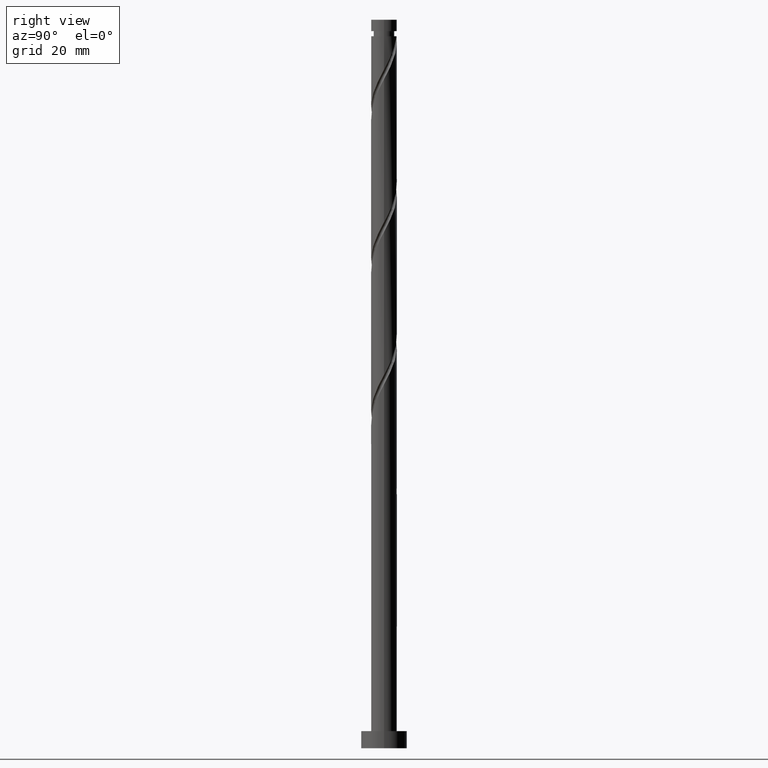
[diagram: clean part render]
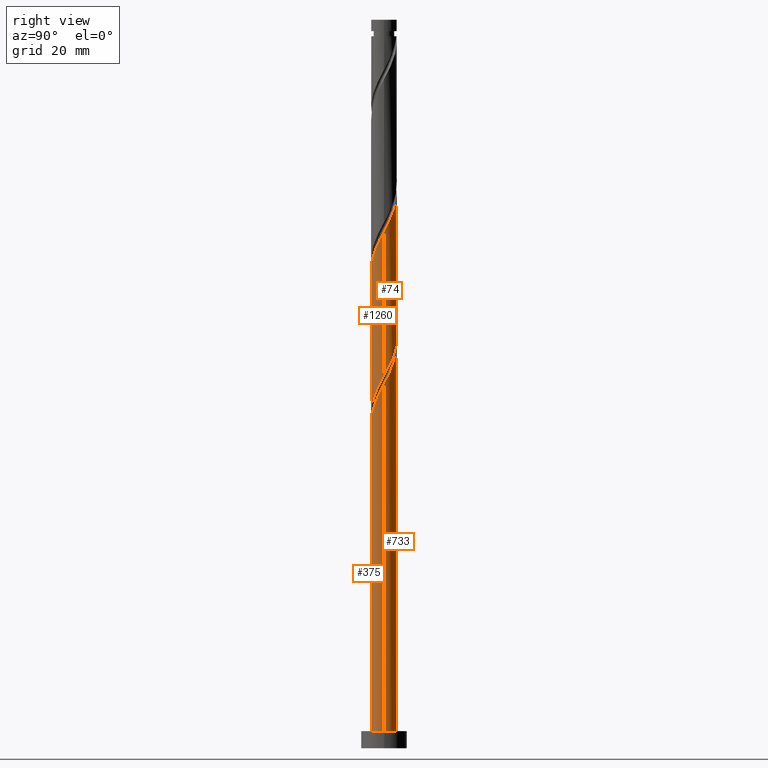
[diagram: same view with one multi-face feature highlighted, each face labeled with its STEP entity id]
A machine part, right view. The highlighted faces form ONE feature: a constant-radius fillet chain: 4 tangent blend faces with common blend radius 2.25 mm. The faces share edges in the B-rep.
Their STEP definitions:
[1] entity #733 (Cylinder):
#1 = CARTESIAN_POINT ( 'NONE',  ( 0.000000000000000000, 0.000000000000000000, 127.2999999999999972 ) ) ;
#16 = VECTOR ( 'NONE', #1168, 1000.000000000000000 ) ;
#29 = CARTESIAN_POINT ( 'NONE',  ( -1.050827842467678463, 1.989537847213452615, 72.28903186319759300 ) ) ;
#50 = DIRECTION ( 'NONE',  ( -1.000000000000000000, 0.000000000000000000, 0.000000000000000000 ) ) ;
#57 = CARTESIAN_POINT ( 'NONE',  ( 2.250000000000003553, 1.263851349445444954E-15, 63.56078950510882208 ) ) ;
#63 = CARTESIAN_POINT ( 'NONE',  ( -0.7647754849568962898, 2.140624081685873925, 71.68297125713698392 ) ) ;
#84 = CARTESIAN_POINT ( 'NONE',  ( -2.249999999999999556, 8.286078669737070471E-15, 51.92636513037725621 ) ) ;
#89 = CARTESIAN_POINT ( 'NONE',  ( -2.227674514516370330, 0.4523486032461996320, 51.07691065107637485 ) ) ;
#143 = DIRECTION ( 'NONE',  ( 0.000000000000000000, -0.000000000000000000, -1.000000000000000000 ) ) ;
#150 = EDGE_CURVE ( 'NONE', #1283, #771, #361, .T. ) ;
#152 = CARTESIAN_POINT ( 'NONE',  ( -1.336880199978460304, 1.838451612741031305, 72.89509246925820207 ) ) ;
#164 = CARTESIAN_POINT ( 'NONE',  ( -2.118597173968808534, 0.8238319100010177420, 48.65266822683393855 ) ) ;
#194 = CARTESIAN_POINT ( 'NONE',  ( 2.250000000000000000, 2.755455298081544285E-16, 127.2999999999999972 ) ) ;
#201 = AXIS2_PLACEMENT_3D ( 'NONE', #1195, #143, #50 ) ;
#213 = ORIENTED_EDGE ( 'NONE', *, *, #221, .T. ) ;
#221 = EDGE_CURVE ( 'NONE', #1461, #771, #1143, .T. ) ;
#223 = DIRECTION ( 'NONE',  ( -0.000000000000000000, -0.000000000000000000, -1.000000000000000000 ) ) ;
#235 = DIRECTION ( 'NONE',  ( 1.000000000000000000, 0.000000000000000000, 0.000000000000000000 ) ) ;
#237 = CARTESIAN_POINT ( 'NONE',  ( -1.373217619952648461, 1.782350517785876720, 48.04660762077334368 ) ) ;
#244 = CARTESIAN_POINT ( 'NONE',  ( 0.1307132084390630333, 2.269375918314128882, 45.01630459047031962 ) ) ;
#264 = ORIENTED_EDGE ( 'NONE', *, *, #1435, .F. ) ;
#278 = CARTESIAN_POINT ( 'NONE',  ( 2.227674514516373439, 0.4523486032461992989, 64.41024398440970344 ) ) ;
#294 = CARTESIAN_POINT ( 'NONE',  ( -2.250000000000004885, 0.2576900866165232618, 76.40816288547084412 ) ) ;
#304 = CARTESIAN_POINT ( 'NONE',  ( -2.249999999999999556, 8.286078669737068893E-15, 51.92636513037725621 ) ) ;
#313 = CARTESIAN_POINT ( 'NONE',  ( 0.1916127332030286845, 2.241826166426486910, 69.86478943895514249 ) ) ;
#320 = CARTESIAN_POINT ( 'NONE',  ( 2.250000000000003553, 1.263851349445444954E-15, 63.56078950510882208 ) ) ;
#358 = VECTOR ( 'NONE', #223, 1000.000000000000000 ) ;
#361 =( BOUNDED_CURVE ( )  B_SPLINE_CURVE ( 2, ( #84, #592, #1107, #89, #600, #1395, #510, #1530, #237, #1021, #379, #618, #1163, #244, #1156 ),
 .UNSPECIFIED., .F., .T. ) 
 B_SPLINE_CURVE_WITH_KNOTS ( ( 3, 2, 2, 2, 2, 2, 2, 3 ),
 ( 0.9295252162417514397, 0.9318181818181817677, 0.9431818181818182323, 0.9545454545454545858, 0.9659090909090909394, 0.9772727272727272929, 0.9886363636363636465, 1.000000000000000000 ),
 .UNSPECIFIED. ) 
 CURVE ( )  GEOMETRIC_REPRESENTATION_ITEM ( )  RATIONAL_B_SPLINE_CURVE ( ( 0.9061101570135543515, 0.9072237824201365708, 0.9090909090909138346, 0.8998376744372161840, 0.9090909090909138346, 0.8998376744372161840, 0.9090909090909138346, 0.8998376744372161840, 0.9090909090909138346, 0.8998376744372161840, 0.9090909090909138346, 0.8998376744372161840, 0.9090909090909138346, 0.8998376744372161840, 0.9090909090909138346 ) ) 
 REPRESENTATION_ITEM ( '' )  );
#379 = CARTESIAN_POINT ( 'NONE',  ( -0.8154464890247281605, 2.097032909502672293, 46.83448640865213264 ) ) ;
#385 = LINE ( 'NONE', #1135, #16 ) ;
#389 = AXIS2_PLACEMENT_3D ( 'NONE', #1, #876, #761 ) ;
#439 = CARTESIAN_POINT ( 'NONE',  ( -2.250000000000003553, -7.672849020893648660E-15, 76.89412283844215779 ) ) ;
#448 = CARTESIAN_POINT ( 'NONE',  ( -2.250000000000000000, 0.000000000000000000, 127.2999999999999972 ) ) ;
#463 = LINE ( 'NONE', #448, #1062 ) ;
#480 = CYLINDRICAL_SURFACE ( 'NONE', #389, 2.250000000000000000 ) ;
#508 = CARTESIAN_POINT ( 'NONE',  ( 0.4477443466979796893, 2.204999999999999627, 44.41024398440971055 ) ) ;
#510 = CARTESIAN_POINT ( 'NONE',  ( -1.819738826151650057, 1.323272687164747330, 49.25872883289456894 ) ) ;
#534 = CARTESIAN_POINT ( 'NONE',  ( -2.118597173968808534, 0.8238319100010177420, 75.31933489350060995 ) ) ;
#545 = CARTESIAN_POINT ( 'NONE',  ( 1.629480936700962834, 1.584911631105248686, 66.83448640865212553 ) ) ;
#550 = CIRCLE ( 'NONE', #743, 2.250000000000000000 ) ;
#554 = CARTESIAN_POINT ( 'NONE',  ( 2.246276943635560297, 0.1293827364500358956, 63.80418337834910147 ) ) ;
#592 = CARTESIAN_POINT ( 'NONE',  ( -2.249999999999999112, 0.06474493467860474583, 51.80426712565903102 ) ) ;
#599 =( BOUNDED_CURVE ( )  B_SPLINE_CURVE ( 2, ( #1184, #1176, #1437, #804, #1042, #1553, #1419, #164, #1561, #1310, #685 ),
 .UNSPECIFIED., .F., .T. ) 
 B_SPLINE_CURVE_WITH_KNOTS ( ( 3, 2, 2, 2, 2, 3 ),
 ( 0.000000000000000000, 0.01136363636363635354, 0.02272727272727270709, 0.03409090909090906063, 0.04545454545454541417, 0.05452521624175119680 ),
 .UNSPECIFIED. ) 
 CURVE ( )  GEOMETRIC_REPRESENTATION_ITEM ( )  RATIONAL_B_SPLINE_CURVE ( ( 0.9090909090909213841, 0.8998376744372236224, 0.9090909090909213841, 0.8998376744372236224, 0.9090909090909213841, 0.8998376744372236224, 0.9090909090909213841, 0.8998376744372236224, 0.9090909090909213841, 0.9017048011080012193, 0.9061101570135616790 ) ) 
 REPRESENTATION_ITEM ( '' )  );
#600 = CARTESIAN_POINT ( 'NONE',  ( -2.118835615059355248, 0.7569911732352234690, 50.47085004501576577 ) ) ;
#618 = CARTESIAN_POINT ( 'NONE',  ( -0.5139386748451186815, 2.214276414538838278, 46.22842580259154488 ) ) ;
#630 = CARTESIAN_POINT ( 'NONE',  ( 0.000000000000000000, 0.000000000000000000, 3.000000000000000000 ) ) ;
#659 = VERTEX_POINT ( 'NONE', #778 ) ;
#685 = CARTESIAN_POINT ( 'NONE',  ( -2.250000000000003109, 4.890880370043320534E-15, 50.22745617177547928 ) ) ;
#721 = VERTEX_POINT ( 'NONE', #1118 ) ;
#733 = ADVANCED_FACE ( 'NONE', ( #1154 ), #480, .T. ) ;
#743 = AXIS2_PLACEMENT_3D ( 'NONE', #630, #1017, #235 ) ;
#752 = EDGE_CURVE ( 'NONE', #1133, #1052, #550, .T. ) ;
#761 = DIRECTION ( 'NONE',  ( -1.000000000000000000, 0.000000000000000000, 0.000000000000000000 ) ) ;
#771 = VERTEX_POINT ( 'NONE', #508 ) ;
#778 = CARTESIAN_POINT ( 'NONE',  ( -2.250000000000003553, 4.890880370043321322E-15, 50.22745617177547928 ) ) ;
#795 = CARTESIAN_POINT ( 'NONE',  ( 2.118835615059359689, 0.7569911732352236911, 65.01630459047031252 ) ) ;
#804 = CARTESIAN_POINT ( 'NONE',  ( -1.336880199978460304, 1.838451612741031305, 46.22842580259150935 ) ) ;
#805 = CARTESIAN_POINT ( 'NONE',  ( 1.373217619952650459, 1.782350517785879385, 67.44054701471274882 ) ) ;
#821 = CARTESIAN_POINT ( 'NONE',  ( -1.800678831930457857, 1.387338727824646956, 74.10721368137940601 ) ) ;
#829 = ORIENTED_EDGE ( 'NONE', *, *, #1519, .T. ) ;
#846 = EDGE_CURVE ( 'NONE', #1461, #659, #599, .T. ) ;
#876 = DIRECTION ( 'NONE',  ( -0.000000000000000000, -0.000000000000000000, -1.000000000000000000 ) ) ;
#924 = CARTESIAN_POINT ( 'NONE',  ( 1.116954303204339860, 1.979789404466509417, 68.04660762077332947 ) ) ;
#934 = CARTESIAN_POINT ( 'NONE',  ( -1.959638002949633195, 1.105585318912832404, 74.71327428744002930 ) ) ;
#941 = CARTESIAN_POINT ( 'NONE',  ( -0.1307132084390624505, 2.269375918314132434, 70.47085004501576577 ) ) ;
#1015 = EDGE_CURVE ( 'NONE', #721, #1283, #385, .T. ) ;
#1017 = DIRECTION ( 'NONE',  ( 0.000000000000000000, 0.000000000000000000, 1.000000000000000000 ) ) ;
#1021 = CARTESIAN_POINT ( 'NONE',  ( -1.116954303204337862, 1.979789404466505864, 47.44054701471274882 ) ) ;
#1042 = CARTESIAN_POINT ( 'NONE',  ( -1.568779515954458859, 1.612895170282838686, 46.83448640865213264 ) ) ;
#1051 = CARTESIAN_POINT ( 'NONE',  ( -2.191738273361778511, 0.5087075201735725694, 75.92539549956123324 ) ) ;
#1052 = VERTEX_POINT ( 'NONE', #1155 ) ;
#1062 = VECTOR ( 'NONE', #1475, 1000.000000000000000 ) ;
#1077 = CARTESIAN_POINT ( 'NONE',  ( -0.4477443466979790232, 2.205000000000003624, 71.07691065107636064 ) ) ;
#1106 = ORIENTED_EDGE ( 'NONE', *, *, #752, .T. ) ;
#1107 = CARTESIAN_POINT ( 'NONE',  ( -2.246276943635557188, 0.1293827364500365895, 51.68297125713699103 ) ) ;
#1118 = CARTESIAN_POINT ( 'NONE',  ( -2.250000000000003553, -7.672849020893648660E-15, 76.89412283844215779 ) ) ;
#1133 = VERTEX_POINT ( 'NONE', #1263 ) ;
#1135 = CARTESIAN_POINT ( 'NONE',  ( -2.250000000000000000, 0.000000000000000000, 127.2999999999999972 ) ) ;
#1143 = CIRCLE ( 'NONE', #201, 2.250000000000000000 ) ;
#1152 = ORIENTED_EDGE ( 'NONE', *, *, #846, .F. ) ;
#1154 = FACE_OUTER_BOUND ( 'NONE', #1304, .T. ) ;
#1155 = CARTESIAN_POINT ( 'NONE',  ( -2.250000000000000000, 0.000000000000000000, 3.000000000000000000 ) ) ;
#1156 = CARTESIAN_POINT ( 'NONE',  ( 0.4477443466979796893, 2.204999999999999627, 44.41024398440971055 ) ) ;
#1163 = CARTESIAN_POINT ( 'NONE',  ( -0.1916127332030278241, 2.241826166426482914, 45.62236519653092870 ) ) ;
#1168 = DIRECTION ( 'NONE',  ( -0.000000000000000000, -0.000000000000000000, -1.000000000000000000 ) ) ;
#1176 = CARTESIAN_POINT ( 'NONE',  ( -0.7647754849568962898, 2.140624081685873925, 45.01630459047030541 ) ) ;
#1184 = CARTESIAN_POINT ( 'NONE',  ( -0.4477443466979790232, 2.205000000000003180, 44.41024398440971055 ) ) ;
#1195 = CARTESIAN_POINT ( 'NONE',  ( 0.000000000000000000, 0.000000000000000000, 44.41024398440971055 ) ) ;
#1201 = ORIENTED_EDGE ( 'NONE', *, *, #150, .F. ) ;
#1212 = CARTESIAN_POINT ( 'NONE',  ( 1.819738826151654498, 1.323272687164748662, 66.22842580259153067 ) ) ;
#1233 = ORIENTED_EDGE ( 'NONE', *, *, #1015, .F. ) ;
#1237 = LINE ( 'NONE', #194, #358 ) ;
#1263 = CARTESIAN_POINT ( 'NONE',  ( 2.250000000000000000, 2.755455298081544285E-16, 3.000000000000000000 ) ) ;
#1283 = VERTEX_POINT ( 'NONE', #304 ) ;
#1303 = CARTESIAN_POINT ( 'NONE',  ( 2.009996715602345940, 1.061633743224248416, 65.62236519653092159 ) ) ;
#1304 = EDGE_LOOP ( 'NONE', ( #264, #829, #1106, #1489, #1152, #213, #1201, #1233 ) ) ;
#1310 = CARTESIAN_POINT ( 'NONE',  ( -2.250000000000001776, 0.2576900866165299786, 49.74149621880417982 ) ) ;
#1311 = CARTESIAN_POINT ( 'NONE',  ( 0.5139386748451200138, 2.214276414538841831, 69.25872883289454762 ) ) ;
#1395 = CARTESIAN_POINT ( 'NONE',  ( -2.009996715602341499, 1.061633743224248194, 49.86478943895518512 ) ) ;
#1419 = CARTESIAN_POINT ( 'NONE',  ( -1.959638002949633195, 1.105585318912832404, 48.04660762077333658 ) ) ;
#1426 =( BOUNDED_CURVE ( )  B_SPLINE_CURVE ( 2, ( #57, #1427, #554, #278, #795, #1303, #1212, #545, #805, #924, #1465, #1311, #313, #941, #1077, #63, #29, #152, #1446, #821, #934, #534, #1051, #294, #439 ),
 .UNSPECIFIED., .F., .T. ) 
 B_SPLINE_CURVE_WITH_KNOTS ( ( 3, 2, 2, 2, 2, 2, 2, 2, 2, 2, 2, 2, 3 ),
 ( 0.1795252162417514397, 0.1818181818181817677, 0.1931818181818182323, 0.2045454545454545858, 0.2159090909090909394, 0.2272727272727272929, 0.2386363636363636465, 0.2500000000000000000, 0.2613636363636363535, 0.2727272727272727071, 0.2840909090909090606, 0.2954545454545454142, 0.3045252162417514397 ),
 .UNSPECIFIED. ) 
 CURVE ( )  GEOMETRIC_REPRESENTATION_ITEM ( )  RATIONAL_B_SPLINE_CURVE ( ( 0.9061101570135619010, 0.9072237824201440093, 0.9090909090909213841, 0.8998376744372236224, 0.9090909090909213841, 0.8998376744372236224, 0.9090909090909213841, 0.8998376744372236224, 0.9090909090909213841, 0.8998376744372236224, 0.9090909090909213841, 0.8998376744372236224, 0.9090909090909213841, 0.8998376744372236224, 0.9090909090909213841, 0.8998376744372236224, 0.9090909090909213841, 0.8998376744372236224, 0.9090909090909213841, 0.8998376744372236224, 0.9090909090909213841, 0.8998376744372236224, 0.9090909090909213841, 0.9017048011080009973, 0.9061101570135619010 ) ) 
 REPRESENTATION_ITEM ( '' )  );
#1427 = CARTESIAN_POINT ( 'NONE',  ( 2.250000000000003109, 0.06474493467860405194, 63.68288750982704727 ) ) ;
#1435 = EDGE_CURVE ( 'NONE', #1634, #721, #1426, .T. ) ;
#1437 = CARTESIAN_POINT ( 'NONE',  ( -1.050827842467678463, 1.989537847213452615, 45.62236519653092159 ) ) ;
#1446 = CARTESIAN_POINT ( 'NONE',  ( -1.568779515954458859, 1.612895170282838686, 73.50115307531878273 ) ) ;
#1461 = VERTEX_POINT ( 'NONE', #1562 ) ;
#1465 = CARTESIAN_POINT ( 'NONE',  ( 0.8154464890247296038, 2.097032909502675402, 68.65266822683395276 ) ) ;
#1475 = DIRECTION ( 'NONE',  ( -0.000000000000000000, -0.000000000000000000, -1.000000000000000000 ) ) ;
#1489 = ORIENTED_EDGE ( 'NONE', *, *, #1619, .F. ) ;
#1519 = EDGE_CURVE ( 'NONE', #1634, #1133, #1237, .T. ) ;
#1530 = CARTESIAN_POINT ( 'NONE',  ( -1.629480936700959504, 1.584911631105246910, 48.65266822683394565 ) ) ;
#1553 = CARTESIAN_POINT ( 'NONE',  ( -1.800678831930457857, 1.387338727824646956, 47.44054701471274171 ) ) ;
#1561 = CARTESIAN_POINT ( 'NONE',  ( -2.191738273361778511, 0.5087075201735725694, 49.25872883289454762 ) ) ;
#1562 = CARTESIAN_POINT ( 'NONE',  ( -0.4477443466979789677, 2.205000000000003180, 44.41024398440971055 ) ) ;
#1619 = EDGE_CURVE ( 'NONE', #659, #1052, #463, .T. ) ;
#1634 = VERTEX_POINT ( 'NONE', #320 ) ;
[2] entity #375 (Cylinder):
#39 = CARTESIAN_POINT ( 'NONE',  ( 1.568779515954458859, -1.612895170282838686, 60.16781974198546834 ) ) ;
#58 = CARTESIAN_POINT ( 'NONE',  ( 0.000000000000000000, 0.000000000000000000, 127.2999999999999972 ) ) ;
#101 = ORIENTED_EDGE ( 'NONE', *, *, #1619, .T. ) ;
#194 = CARTESIAN_POINT ( 'NONE',  ( 2.250000000000000000, 2.755455298081544285E-16, 127.2999999999999972 ) ) ;
#223 = DIRECTION ( 'NONE',  ( -0.000000000000000000, -0.000000000000000000, -1.000000000000000000 ) ) ;
#271 = CARTESIAN_POINT ( 'NONE',  ( 2.191738273361778955, -0.5087075201735723473, 62.59206216622789043 ) ) ;
#288 = CARTESIAN_POINT ( 'NONE',  ( -2.009996715602345052, -1.061633743224249304, 52.28903186319757168 ) ) ;
#296 = EDGE_LOOP ( 'NONE', ( #1020, #1058, #101, #519 ) ) ;
#297 = CARTESIAN_POINT ( 'NONE',  ( 1.959638002949633195, -1.105585318912832626, 61.37994095410666517 ) ) ;
#302 =( BOUNDED_CURVE ( )  B_SPLINE_CURVE ( 2, ( #1037, #698, #910, #1314, #1582, #288, #943, #1555, #305, #1053, #1440, #433, #680, #1574, #1205, #806, #1421, #935, #39, #1448, #297, #814, #271, #660, #1045 ),
 .UNSPECIFIED., .F., .T. ) 
 B_SPLINE_CURVE_WITH_KNOTS ( ( 3, 2, 2, 2, 2, 2, 2, 2, 2, 2, 2, 2, 3 ),
 ( 0.05452521624175119680, 0.05681818181818176772, 0.06818181818181823228, 0.07954545454545458583, 0.09090909090909093937, 0.1022727272727272929, 0.1136363636363636465, 0.1250000000000000000, 0.1363636363636363535, 0.1477272727272727071, 0.1590909090909090606, 0.1704545454545454142, 0.1795252162417514397 ),
 .UNSPECIFIED. ) 
 CURVE ( )  GEOMETRIC_REPRESENTATION_ITEM ( )  RATIONAL_B_SPLINE_CURVE ( ( 0.9061101570135616790, 0.9072237824201437872, 0.9090909090909213841, 0.8998376744372236224, 0.9090909090909213841, 0.8998376744372236224, 0.9090909090909213841, 0.8998376744372236224, 0.9090909090909213841, 0.8998376744372236224, 0.9090909090909213841, 0.8998376744372236224, 0.9090909090909213841, 0.8998376744372236224, 0.9090909090909213841, 0.8998376744372236224, 0.9090909090909213841, 0.8998376744372236224, 0.9090909090909213841, 0.8998376744372236224, 0.9090909090909213841, 0.8998376744372236224, 0.9090909090909213841, 0.9017048011080009973, 0.9061101570135619010 ) ) 
 REPRESENTATION_ITEM ( '' )  );
#305 = CARTESIAN_POINT ( 'NONE',  ( -1.373217619952650903, -1.782350517785879163, 54.10721368137940601 ) ) ;
#320 = CARTESIAN_POINT ( 'NONE',  ( 2.250000000000003553, 1.263851349445444954E-15, 63.56078950510882208 ) ) ;
#358 = VECTOR ( 'NONE', #223, 1000.000000000000000 ) ;
#375 = ADVANCED_FACE ( 'NONE', ( #926 ), #1295, .T. ) ;
#394 = EDGE_CURVE ( 'NONE', #659, #1634, #302, .T. ) ;
#396 = DIRECTION ( 'NONE',  ( -0.000000000000000000, -0.000000000000000000, -1.000000000000000000 ) ) ;
#433 = CARTESIAN_POINT ( 'NONE',  ( -0.5139386748451196807, -2.214276414538842275, 55.92539549956121903 ) ) ;
#448 = CARTESIAN_POINT ( 'NONE',  ( -2.250000000000000000, 0.000000000000000000, 127.2999999999999972 ) ) ;
#463 = LINE ( 'NONE', #448, #1062 ) ;
#494 = AXIS2_PLACEMENT_3D ( 'NONE', #969, #1346, #838 ) ;
#519 = ORIENTED_EDGE ( 'NONE', *, *, #1558, .T. ) ;
#659 = VERTEX_POINT ( 'NONE', #778 ) ;
#660 = CARTESIAN_POINT ( 'NONE',  ( 2.250000000000004885, -0.2576900866165231507, 63.07482955213754394 ) ) ;
#680 = CARTESIAN_POINT ( 'NONE',  ( -0.1916127332030285180, -2.241826166426486910, 56.53145610562183521 ) ) ;
#698 = CARTESIAN_POINT ( 'NONE',  ( -2.250000000000003553, -0.06474493467859740448, 50.34955417649369025 ) ) ;
#778 = CARTESIAN_POINT ( 'NONE',  ( -2.250000000000003553, 4.890880370043321322E-15, 50.22745617177547928 ) ) ;
#806 = CARTESIAN_POINT ( 'NONE',  ( 0.7647754849568956237, -2.140624081685874369, 58.34963792380364112 ) ) ;
#814 = CARTESIAN_POINT ( 'NONE',  ( 2.118597173968808978, -0.8238319100010169649, 61.98600156016728135 ) ) ;
#838 = DIRECTION ( 'NONE',  ( 1.000000000000000000, 0.000000000000000000, 0.000000000000000000 ) ) ;
#910 = CARTESIAN_POINT ( 'NONE',  ( -2.246276943635560297, -0.1293827364500361732, 50.47085004501576577 ) ) ;
#926 = FACE_OUTER_BOUND ( 'NONE', #296, .T. ) ;
#935 = CARTESIAN_POINT ( 'NONE',  ( 1.336880199978460526, -1.838451612741030861, 59.56175913592485927 ) ) ;
#943 = CARTESIAN_POINT ( 'NONE',  ( -1.819738826151654276, -1.323272687164749328, 52.89509246925818786 ) ) ;
#969 = CARTESIAN_POINT ( 'NONE',  ( 0.000000000000000000, 0.000000000000000000, 3.000000000000000000 ) ) ;
#1006 = CIRCLE ( 'NONE', #494, 2.250000000000000000 ) ;
#1020 = ORIENTED_EDGE ( 'NONE', *, *, #1519, .F. ) ;
#1037 = CARTESIAN_POINT ( 'NONE',  ( -2.250000000000003109, 4.890880370043320534E-15, 50.22745617177547928 ) ) ;
#1045 = CARTESIAN_POINT ( 'NONE',  ( 2.250000000000003553, 1.263851349445444954E-15, 63.56078950510882208 ) ) ;
#1052 = VERTEX_POINT ( 'NONE', #1155 ) ;
#1053 = CARTESIAN_POINT ( 'NONE',  ( -1.116954303204340304, -1.979789404466508973, 54.71327428744000798 ) ) ;
#1058 = ORIENTED_EDGE ( 'NONE', *, *, #394, .F. ) ;
#1062 = VECTOR ( 'NONE', #1475, 1000.000000000000000 ) ;
#1133 = VERTEX_POINT ( 'NONE', #1263 ) ;
#1155 = CARTESIAN_POINT ( 'NONE',  ( -2.250000000000000000, 0.000000000000000000, 3.000000000000000000 ) ) ;
#1205 = CARTESIAN_POINT ( 'NONE',  ( 0.4477443466979791342, -2.205000000000003624, 57.74357731774303915 ) ) ;
#1237 = LINE ( 'NONE', #194, #358 ) ;
#1263 = CARTESIAN_POINT ( 'NONE',  ( 2.250000000000000000, 2.755455298081544285E-16, 3.000000000000000000 ) ) ;
#1295 = CYLINDRICAL_SURFACE ( 'NONE', #1360, 2.250000000000000000 ) ;
#1314 = CARTESIAN_POINT ( 'NONE',  ( -2.227674514516373439, -0.4523486032461995210, 51.07691065107638195 ) ) ;
#1322 = DIRECTION ( 'NONE',  ( -1.000000000000000000, 0.000000000000000000, 0.000000000000000000 ) ) ;
#1346 = DIRECTION ( 'NONE',  ( 0.000000000000000000, 0.000000000000000000, 1.000000000000000000 ) ) ;
#1360 = AXIS2_PLACEMENT_3D ( 'NONE', #58, #396, #1322 ) ;
#1421 = CARTESIAN_POINT ( 'NONE',  ( 1.050827842467677575, -1.989537847213453503, 58.95569852986425730 ) ) ;
#1440 = CARTESIAN_POINT ( 'NONE',  ( -0.8154464890247303810, -2.097032909502675402, 55.31933489350062416 ) ) ;
#1448 = CARTESIAN_POINT ( 'NONE',  ( 1.800678831930457413, -1.387338727824647178, 60.77388034804605610 ) ) ;
#1475 = DIRECTION ( 'NONE',  ( -0.000000000000000000, -0.000000000000000000, -1.000000000000000000 ) ) ;
#1519 = EDGE_CURVE ( 'NONE', #1634, #1133, #1237, .T. ) ;
#1555 = CARTESIAN_POINT ( 'NONE',  ( -1.629480936700961502, -1.584911631105249352, 53.50115307531878983 ) ) ;
#1558 = EDGE_CURVE ( 'NONE', #1052, #1133, #1006, .T. ) ;
#1574 = CARTESIAN_POINT ( 'NONE',  ( 0.1307132084390627835, -2.269375918314132434, 57.13751671168243007 ) ) ;
#1582 = CARTESIAN_POINT ( 'NONE',  ( -2.118835615059359689, -0.7569911732352241351, 51.68297125713697682 ) ) ;
#1619 = EDGE_CURVE ( 'NONE', #659, #1052, #463, .T. ) ;
#1634 = VERTEX_POINT ( 'NONE', #320 ) ;
[3] entity #1260 (Cylinder):
#3 = CARTESIAN_POINT ( 'NONE',  ( -0.4477443466979794118, -2.204999999999999627, 57.74357731774305336 ) ) ;
#16 = VECTOR ( 'NONE', #1168, 1000.000000000000000 ) ;
#47 = AXIS2_PLACEMENT_3D ( 'NONE', #1656, #949, #1193 ) ;
#92 = CARTESIAN_POINT ( 'NONE',  ( 1.959638002949633195, -1.105585318912832626, 88.04660762077334368 ) ) ;
#102 = CARTESIAN_POINT ( 'NONE',  ( 2.250000000000000000, -2.505267467835666472E-15, 65.25969846371059191 ) ) ;
#105 = CARTESIAN_POINT ( 'NONE',  ( 0.1916127332030271024, -2.241826166426482914, 58.95569852986424308 ) ) ;
#116 = CARTESIAN_POINT ( 'NONE',  ( 0.1307132084390627835, -2.269375918314132434, 83.80418337834909437 ) ) ;
#125 = CARTESIAN_POINT ( 'NONE',  ( 1.050827842467677575, -1.989537847213453503, 85.62236519653093580 ) ) ;
#142 = FACE_OUTER_BOUND ( 'NONE', #331, .T. ) ;
#177 = CARTESIAN_POINT ( 'NONE',  ( 2.250000000000003553, 1.263851349445444954E-15, 90.22745617177550059 ) ) ;
#192 = EDGE_CURVE ( 'NONE', #736, #1283, #1227, .T. ) ;
#229 = CARTESIAN_POINT ( 'NONE',  ( 1.629480936700959504, -1.584911631105246910, 61.98600156016728846 ) ) ;
#248 = CARTESIAN_POINT ( 'NONE',  ( -2.227674514516373439, -0.4523486032461995210, 77.74357731774301783 ) ) ;
#257 = CARTESIAN_POINT ( 'NONE',  ( -2.250000000000003109, -0.06474493467860424623, 77.01622084316036876 ) ) ;
#266 = VERTEX_POINT ( 'NONE', #177 ) ;
#286 = CARTESIAN_POINT ( 'NONE',  ( 2.250000000000000000, 2.755455298081544285E-16, 127.2999999999999972 ) ) ;
#304 = CARTESIAN_POINT ( 'NONE',  ( -2.249999999999999556, 8.286078669737068893E-15, 51.92636513037725621 ) ) ;
#331 = EDGE_LOOP ( 'NONE', ( #753, #679, #932, #797 ) ) ;
#362 = CARTESIAN_POINT ( 'NONE',  ( -1.800678831930455193, -1.387338727824644069, 54.71327428744001509 ) ) ;
#368 = CARTESIAN_POINT ( 'NONE',  ( -0.8154464890247303810, -2.097032909502675402, 81.98600156016728135 ) ) ;
#385 = LINE ( 'NONE', #1135, #16 ) ;
#386 = CARTESIAN_POINT ( 'NONE',  ( 1.373217619952648016, -1.782350517785876720, 61.37994095410667938 ) ) ;
#486 = CARTESIAN_POINT ( 'NONE',  ( -0.1916127332030285180, -2.241826166426486910, 83.19812277228849950 ) ) ;
#490 = CARTESIAN_POINT ( 'NONE',  ( -1.050827842467676909, -1.989537847213448618, 56.53145610562182810 ) ) ;
#495 = CARTESIAN_POINT ( 'NONE',  ( -1.819738826151654276, -1.323272687164749328, 79.56175913592485927 ) ) ;
#502 = CARTESIAN_POINT ( 'NONE',  ( 0.7647754849568956237, -2.140624081685874369, 85.01630459047032673 ) ) ;
#555 = CARTESIAN_POINT ( 'NONE',  ( -2.250000000000000444, -0.2576900866165222070, 52.41232508334854856 ) ) ;
#606 = CARTESIAN_POINT ( 'NONE',  ( 2.118597173968808978, -0.8238319100010169649, 88.65266822683396697 ) ) ;
#633 = CARTESIAN_POINT ( 'NONE',  ( 1.116954303204337640, -1.979789404466506308, 60.77388034804607031 ) ) ;
#639 = CARTESIAN_POINT ( 'NONE',  ( 1.800678831930457413, -1.387338727824647178, 87.44054701471273461 ) ) ;
#642 = CARTESIAN_POINT ( 'NONE',  ( 2.249999999999999112, -0.06474493467860518991, 65.13760045899236673 ) ) ;
#678 = EDGE_CURVE ( 'NONE', #721, #266, #881, .T. ) ;
#679 = ORIENTED_EDGE ( 'NONE', *, *, #678, .F. ) ;
#687 = CARTESIAN_POINT ( 'NONE',  ( -2.249999999999999556, 8.286078669737070471E-15, 51.92636513037725621 ) ) ;
#721 = VERTEX_POINT ( 'NONE', #1118 ) ;
#736 = VERTEX_POINT ( 'NONE', #102 ) ;
#748 = CARTESIAN_POINT ( 'NONE',  ( 0.8154464890247281605, -2.097032909502672293, 60.16781974198546834 ) ) ;
#753 = ORIENTED_EDGE ( 'NONE', *, *, #1291, .F. ) ;
#755 = CARTESIAN_POINT ( 'NONE',  ( 2.191738273361778955, -0.5087075201735723473, 89.25872883289457604 ) ) ;
#757 = CARTESIAN_POINT ( 'NONE',  ( 2.246276943635557188, -0.1293827364500369226, 65.01630459047031252 ) ) ;
#769 = CARTESIAN_POINT ( 'NONE',  ( -2.009996715602345052, -1.061633743224249304, 78.95569852986423598 ) ) ;
#797 = ORIENTED_EDGE ( 'NONE', *, *, #192, .F. ) ;
#868 = CARTESIAN_POINT ( 'NONE',  ( -2.118835615059359689, -0.7569911732352241351, 78.34963792380364112 ) ) ;
#874 = VECTOR ( 'NONE', #1588, 1000.000000000000000 ) ;
#878 = CARTESIAN_POINT ( 'NONE',  ( -1.959638002949629865, -1.105585318912829518, 54.10721368137941312 ) ) ;
#881 =( BOUNDED_CURVE ( )  B_SPLINE_CURVE ( 2, ( #1009, #257, #1628, #248, #868, #769, #495, #1262, #1522, #1399, #368, #1393, #486, #116, #1276, #502, #125, #1387, #1411, #639, #92, #606, #755, #1000, #1513 ),
 .UNSPECIFIED., .F., .T. ) 
 B_SPLINE_CURVE_WITH_KNOTS ( ( 3, 2, 2, 2, 2, 2, 2, 2, 2, 2, 2, 2, 3 ),
 ( 0.3045252162417514397, 0.3068181818181817677, 0.3181818181818182323, 0.3295454545454545858, 0.3409090909090909394, 0.3522727272727272929, 0.3636363636363636465, 0.3750000000000000000, 0.3863636363636363535, 0.3977272727272727071, 0.4090909090909090606, 0.4204545454545454142, 0.4295252162417516617 ),
 .UNSPECIFIED. ) 
 CURVE ( )  GEOMETRIC_REPRESENTATION_ITEM ( )  RATIONAL_B_SPLINE_CURVE ( ( 0.9061101570135619010, 0.9072237824201440093, 0.9090909090909213841, 0.8998376744372236224, 0.9090909090909213841, 0.8998376744372236224, 0.9090909090909213841, 0.8998376744372236224, 0.9090909090909213841, 0.8998376744372236224, 0.9090909090909213841, 0.8998376744372236224, 0.9090909090909213841, 0.8998376744372236224, 0.9090909090909213841, 0.8998376744372236224, 0.9090909090909213841, 0.8998376744372236224, 0.9090909090909213841, 0.8998376744372236224, 0.9090909090909213841, 0.8998376744372236224, 0.9090909090909213841, 0.9017048011080007752, 0.9061101570135621230 ) ) 
 REPRESENTATION_ITEM ( '' )  );
#932 = ORIENTED_EDGE ( 'NONE', *, *, #1015, .T. ) ;
#949 = DIRECTION ( 'NONE',  ( -0.000000000000000000, -0.000000000000000000, -1.000000000000000000 ) ) ;
#1000 = CARTESIAN_POINT ( 'NONE',  ( 2.250000000000005773, -0.2576900866165169335, 89.74149621880421535 ) ) ;
#1003 = CARTESIAN_POINT ( 'NONE',  ( -1.336880199978458528, -1.838451612741028196, 55.92539549956122613 ) ) ;
#1009 = CARTESIAN_POINT ( 'NONE',  ( -2.250000000000003553, -7.672849020893648660E-15, 76.89412283844215779 ) ) ;
#1015 = EDGE_CURVE ( 'NONE', #721, #1283, #385, .T. ) ;
#1118 = CARTESIAN_POINT ( 'NONE',  ( -2.250000000000003553, -7.672849020893648660E-15, 76.89412283844215779 ) ) ;
#1129 = CARTESIAN_POINT ( 'NONE',  ( -0.1307132084390636162, -2.269375918314129326, 58.34963792380365533 ) ) ;
#1135 = CARTESIAN_POINT ( 'NONE',  ( -2.250000000000000000, 0.000000000000000000, 127.2999999999999972 ) ) ;
#1145 = CYLINDRICAL_SURFACE ( 'NONE', #47, 2.250000000000000000 ) ;
#1168 = DIRECTION ( 'NONE',  ( -0.000000000000000000, -0.000000000000000000, -1.000000000000000000 ) ) ;
#1185 = LINE ( 'NONE', #286, #874 ) ;
#1193 = DIRECTION ( 'NONE',  ( -1.000000000000000000, 0.000000000000000000, 0.000000000000000000 ) ) ;
#1227 =( BOUNDED_CURVE ( )  B_SPLINE_CURVE ( 2, ( #1539, #642, #757, #1413, #1647, #1287, #1380, #229, #386, #633, #748, #1256, #105, #1129, #3, #1641, #490, #1003, #1516, #362, #878, #1389, #1331, #555, #687 ),
 .UNSPECIFIED., .F., .T. ) 
 B_SPLINE_CURVE_WITH_KNOTS ( ( 3, 2, 2, 2, 2, 2, 2, 2, 2, 2, 2, 2, 3 ),
 ( 0.8045252162417514397, 0.8068181818181817677, 0.8181818181818182323, 0.8295454545454545858, 0.8409090909090909394, 0.8522727272727272929, 0.8636363636363636465, 0.8750000000000000000, 0.8863636363636363535, 0.8977272727272727071, 0.9090909090909090606, 0.9204545454545454142, 0.9295252162417514397 ),
 .UNSPECIFIED. ) 
 CURVE ( )  GEOMETRIC_REPRESENTATION_ITEM ( )  RATIONAL_B_SPLINE_CURVE ( ( 0.9061101570135543515, 0.9072237824201365708, 0.9090909090909138346, 0.8998376744372161840, 0.9090909090909138346, 0.8998376744372161840, 0.9090909090909138346, 0.8998376744372161840, 0.9090909090909138346, 0.8998376744372161840, 0.9090909090909138346, 0.8998376744372161840, 0.9090909090909138346, 0.8998376744372161840, 0.9090909090909138346, 0.8998376744372161840, 0.9090909090909138346, 0.8998376744372161840, 0.9090909090909138346, 0.8998376744372161840, 0.9090909090909138346, 0.8998376744372161840, 0.9090909090909138346, 0.9017048011079935588, 0.9061101570135543515 ) ) 
 REPRESENTATION_ITEM ( '' )  );
#1256 = CARTESIAN_POINT ( 'NONE',  ( 0.5139386748451190146, -2.214276414538837390, 59.56175913592487348 ) ) ;
#1260 = ADVANCED_FACE ( 'NONE', ( #142 ), #1145, .T. ) ;
#1262 = CARTESIAN_POINT ( 'NONE',  ( -1.629480936700961502, -1.584911631105249352, 80.16781974198543992 ) ) ;
#1276 = CARTESIAN_POINT ( 'NONE',  ( 0.4477443466979791342, -2.205000000000003624, 84.41024398440971765 ) ) ;
#1283 = VERTEX_POINT ( 'NONE', #304 ) ;
#1287 = CARTESIAN_POINT ( 'NONE',  ( 2.009996715602341499, -1.061633743224247750, 63.19812277228852082 ) ) ;
#1291 = EDGE_CURVE ( 'NONE', #266, #736, #1185, .T. ) ;
#1331 = CARTESIAN_POINT ( 'NONE',  ( -2.191738273361774958, -0.5087075201735710150, 52.89509246925819497 ) ) ;
#1380 = CARTESIAN_POINT ( 'NONE',  ( 1.819738826151650724, -1.323272687164747330, 62.59206216622789754 ) ) ;
#1387 = CARTESIAN_POINT ( 'NONE',  ( 1.336880199978460526, -1.838451612741030861, 86.22842580259150225 ) ) ;
#1389 = CARTESIAN_POINT ( 'NONE',  ( -2.118597173968805425, -0.8238319100010157436, 53.50115307531881115 ) ) ;
#1393 = CARTESIAN_POINT ( 'NONE',  ( -0.5139386748451196807, -2.214276414538842275, 82.59206216622789043 ) ) ;
#1399 = CARTESIAN_POINT ( 'NONE',  ( -1.116954303204340304, -1.979789404466508973, 81.37994095410665807 ) ) ;
#1411 = CARTESIAN_POINT ( 'NONE',  ( 1.568779515954458859, -1.612895170282838686, 86.83448640865209711 ) ) ;
#1413 = CARTESIAN_POINT ( 'NONE',  ( 2.227674514516370330, -0.4523486032461999651, 64.41024398440970344 ) ) ;
#1513 = CARTESIAN_POINT ( 'NONE',  ( 2.250000000000003553, 1.263851349445444954E-15, 90.22745617177550059 ) ) ;
#1516 = CARTESIAN_POINT ( 'NONE',  ( -1.568779515954457082, -1.612895170282835799, 55.31933489350062416 ) ) ;
#1522 = CARTESIAN_POINT ( 'NONE',  ( -1.373217619952650903, -1.782350517785879163, 80.77388034804607742 ) ) ;
#1539 = CARTESIAN_POINT ( 'NONE',  ( 2.250000000000000000, -2.505267467835666472E-15, 65.25969846371059191 ) ) ;
#1588 = DIRECTION ( 'NONE',  ( -0.000000000000000000, -0.000000000000000000, -1.000000000000000000 ) ) ;
#1628 = CARTESIAN_POINT ( 'NONE',  ( -2.246276943635560297, -0.1293827364500361732, 77.13751671168243718 ) ) ;
#1641 = CARTESIAN_POINT ( 'NONE',  ( -0.7647754849568952906, -2.140624081685869928, 57.13751671168243007 ) ) ;
#1647 = CARTESIAN_POINT ( 'NONE',  ( 2.118835615059355248, -0.7569911732352238021, 63.80418337834910147 ) ) ;
#1656 = CARTESIAN_POINT ( 'NONE',  ( 0.000000000000000000, 0.000000000000000000, 127.2999999999999972 ) ) ;
[4] entity #74 (Cylinder):
#64 = CARTESIAN_POINT ( 'NONE',  ( -2.250000000000003553, 0.2576900866165256487, 103.0748295521375297 ) ) ;
#73 = CARTESIAN_POINT ( 'NONE',  ( -2.250000000000003109, 1.742469611957329530E-15, 103.5607895051088150 ) ) ;
#74 = ADVANCED_FACE ( 'NONE', ( #1225 ), #850, .T. ) ;
#102 = CARTESIAN_POINT ( 'NONE',  ( 2.250000000000000000, -2.505267467835666472E-15, 65.25969846371059191 ) ) ;
#112 = CARTESIAN_POINT ( 'NONE',  ( 2.118597173968805869, 0.8238319100010145224, 66.83448640865213974 ) ) ;
#127 = CARTESIAN_POINT ( 'NONE',  ( -2.249999999999999112, 0.06474493467860474583, 78.47093379232569532 ) ) ;
#177 = CARTESIAN_POINT ( 'NONE',  ( 2.250000000000003553, 1.263851349445444954E-15, 90.22745617177550059 ) ) ;
#182 = EDGE_CURVE ( 'NONE', #326, #736, #1620, .T. ) ;
#195 = CARTESIAN_POINT ( 'NONE',  ( 0.1916127332030286845, 2.241826166426486910, 96.53145610562181389 ) ) ;
#209 = CARTESIAN_POINT ( 'NONE',  ( -1.050827842467678463, 1.989537847213452615, 98.95569852986425019 ) ) ;
#251 = CARTESIAN_POINT ( 'NONE',  ( -2.118835615059355248, 0.7569911732352234690, 77.13751671168243718 ) ) ;
#261 = CARTESIAN_POINT ( 'NONE',  ( 2.191738273361774958, 0.5087075201735703489, 66.22842580259154488 ) ) ;
#266 = VERTEX_POINT ( 'NONE', #177 ) ;
#286 = CARTESIAN_POINT ( 'NONE',  ( 2.250000000000000000, 2.755455298081544285E-16, 127.2999999999999972 ) ) ;
#314 = CARTESIAN_POINT ( 'NONE',  ( 2.250000000000002665, 0.06474493467861032470, 90.34955417649372578 ) ) ;
#326 = VERTEX_POINT ( 'NONE', #1549 ) ;
#342 = CARTESIAN_POINT ( 'NONE',  ( -0.4477443466979790232, 2.205000000000003624, 97.74357731774301783 ) ) ;
#353 = CARTESIAN_POINT ( 'NONE',  ( -0.8154464890247281605, 2.097032909502672293, 73.50115307531878273 ) ) ;
#370 = CARTESIAN_POINT ( 'NONE',  ( -2.246276943635557188, 0.1293827364500365895, 78.34963792380364112 ) ) ;
#458 = CARTESIAN_POINT ( 'NONE',  ( 2.009996715602345940, 1.061633743224248416, 92.28903186319757879 ) ) ;
#473 = CARTESIAN_POINT ( 'NONE',  ( -2.250000000000003109, 1.742469611957329530E-15, 103.5607895051088150 ) ) ;
#475 =( BOUNDED_CURVE ( )  B_SPLINE_CURVE ( 2, ( #1339, #314, #1369, #730, #961, #458, #978, #1467, #1590, #840, #707, #1476, #195, #1230, #342, #1614, #209, #581, #1606, #737, #596, #1213, #1245, #64, #73 ),
 .UNSPECIFIED., .F., .T. ) 
 B_SPLINE_CURVE_WITH_KNOTS ( ( 3, 2, 2, 2, 2, 2, 2, 2, 2, 2, 2, 2, 3 ),
 ( 0.4295252162417516617, 0.4318181818181817677, 0.4431818181818182323, 0.4545454545454545858, 0.4659090909090909394, 0.4772727272727272929, 0.4886363636363636465, 0.5000000000000000000, 0.5113636363636363535, 0.5227272727272727071, 0.5340909090909091717, 0.5454545454545454142, 0.5545252162417514397 ),
 .UNSPECIFIED. ) 
 CURVE ( )  GEOMETRIC_REPRESENTATION_ITEM ( )  RATIONAL_B_SPLINE_CURVE ( ( 0.9061101570135621230, 0.9072237824201442313, 0.9090909090909213841, 0.8998376744372236224, 0.9090909090909213841, 0.8998376744372236224, 0.9090909090909213841, 0.8998376744372236224, 0.9090909090909213841, 0.8998376744372236224, 0.9090909090909213841, 0.8998376744372236224, 0.9090909090909213841, 0.8998376744372236224, 0.9090909090909213841, 0.8998376744372236224, 0.9090909090909213841, 0.8998376744372236224, 0.9090909090909213841, 0.8998376744372236224, 0.9090909090909213841, 0.8998376744372236224, 0.9090909090909213841, 0.9017048011080011083, 0.9061101570135616790 ) ) 
 REPRESENTATION_ITEM ( '' )  );
#497 = CARTESIAN_POINT ( 'NONE',  ( -1.116954303204337862, 1.979789404466505864, 74.10721368137942022 ) ) ;
#504 = CARTESIAN_POINT ( 'NONE',  ( 1.336880199978458528, 1.838451612741027752, 69.25872883289453341 ) ) ;
#514 = ORIENTED_EDGE ( 'NONE', *, *, #182, .F. ) ;
#516 = EDGE_CURVE ( 'NONE', #266, #595, #475, .T. ) ;
#571 = ORIENTED_EDGE ( 'NONE', *, *, #1291, .T. ) ;
#575 = DIRECTION ( 'NONE',  ( -1.000000000000000000, 0.000000000000000000, 0.000000000000000000 ) ) ;
#581 = CARTESIAN_POINT ( 'NONE',  ( -1.336880199978460304, 1.838451612741031305, 99.56175913592483084 ) ) ;
#595 = VERTEX_POINT ( 'NONE', #473 ) ;
#596 = CARTESIAN_POINT ( 'NONE',  ( -1.959638002949633195, 1.105585318912832404, 101.3799409541066581 ) ) ;
#623 = CARTESIAN_POINT ( 'NONE',  ( 2.250000000000000000, -2.505267467835666472E-15, 65.25969846371059191 ) ) ;
#650 = CARTESIAN_POINT ( 'NONE',  ( -2.227674514516370330, 0.4523486032461996320, 77.74357731774306046 ) ) ;
#707 = CARTESIAN_POINT ( 'NONE',  ( 0.8154464890247296038, 2.097032909502675402, 95.31933489350059574 ) ) ;
#722 = VECTOR ( 'NONE', #1388, 1000.000000000000000 ) ;
#730 = CARTESIAN_POINT ( 'NONE',  ( 2.227674514516373439, 0.4523486032461992989, 91.07691065107634643 ) ) ;
#736 = VERTEX_POINT ( 'NONE', #102 ) ;
#737 = CARTESIAN_POINT ( 'NONE',  ( -1.800678831930457857, 1.387338727824646956, 100.7738803480460774 ) ) ;
#751 = EDGE_LOOP ( 'NONE', ( #976, #571, #514, #1150 ) ) ;
#763 = CARTESIAN_POINT ( 'NONE',  ( 0.1307132084390630333, 2.269375918314128882, 71.68297125713698392 ) ) ;
#773 = CARTESIAN_POINT ( 'NONE',  ( -1.373217619952648461, 1.782350517785876720, 74.71327428743998667 ) ) ;
#780 = CARTESIAN_POINT ( 'NONE',  ( -0.5139386748451186815, 2.214276414538838278, 72.89509246925821628 ) ) ;
#840 = CARTESIAN_POINT ( 'NONE',  ( 1.116954303204339860, 1.979789404466509417, 94.71327428743998667 ) ) ;
#850 = CYLINDRICAL_SURFACE ( 'NONE', #1573, 2.250000000000000000 ) ;
#874 = VECTOR ( 'NONE', #1588, 1000.000000000000000 ) ;
#884 = CARTESIAN_POINT ( 'NONE',  ( -2.009996715602341499, 1.061633743224248194, 76.53145610562187073 ) ) ;
#900 = LINE ( 'NONE', #1412, #722 ) ;
#901 = CARTESIAN_POINT ( 'NONE',  ( 0.4477443466979798004, 2.204999999999999627, 71.07691065107637485 ) ) ;
#961 = CARTESIAN_POINT ( 'NONE',  ( 2.118835615059359689, 0.7569911732352236911, 91.68297125713696971 ) ) ;
#976 = ORIENTED_EDGE ( 'NONE', *, *, #516, .F. ) ;
#978 = CARTESIAN_POINT ( 'NONE',  ( 1.819738826151654498, 1.323272687164748662, 92.89509246925820207 ) ) ;
#1011 = CARTESIAN_POINT ( 'NONE',  ( 2.250000000000000444, 0.2576900866165214299, 65.74565841668189137 ) ) ;
#1025 = EDGE_CURVE ( 'NONE', #595, #326, #900, .T. ) ;
#1028 = CARTESIAN_POINT ( 'NONE',  ( 1.568779515954456416, 1.612895170282836022, 68.65266822683393855 ) ) ;
#1146 = CARTESIAN_POINT ( 'NONE',  ( 0.7647754849568956237, 2.140624081685869928, 70.47085004501577998 ) ) ;
#1150 = ORIENTED_EDGE ( 'NONE', *, *, #1025, .F. ) ;
#1185 = LINE ( 'NONE', #286, #874 ) ;
#1213 = CARTESIAN_POINT ( 'NONE',  ( -2.118597173968808534, 0.8238319100010177420, 101.9860015601672814 ) ) ;
#1225 = FACE_OUTER_BOUND ( 'NONE', #751, .T. ) ;
#1230 = CARTESIAN_POINT ( 'NONE',  ( -0.1307132084390624505, 2.269375918314132434, 97.13751671168240875 ) ) ;
#1245 = CARTESIAN_POINT ( 'NONE',  ( -2.191738273361778511, 0.5087075201735725694, 102.5920621662278904 ) ) ;
#1248 = CARTESIAN_POINT ( 'NONE',  ( 0.000000000000000000, 0.000000000000000000, 127.2999999999999972 ) ) ;
#1265 = CARTESIAN_POINT ( 'NONE',  ( 1.050827842467677131, 1.989537847213448618, 69.86478943895515670 ) ) ;
#1270 = CARTESIAN_POINT ( 'NONE',  ( 1.959638002949629865, 1.105585318912830406, 67.44054701471274882 ) ) ;
#1279 = CARTESIAN_POINT ( 'NONE',  ( 1.800678831930454749, 1.387338727824644513, 68.04660762077334368 ) ) ;
#1291 = EDGE_CURVE ( 'NONE', #266, #736, #1185, .T. ) ;
#1339 = CARTESIAN_POINT ( 'NONE',  ( 2.250000000000003553, 1.263851349445444954E-15, 90.22745617177550059 ) ) ;
#1369 = CARTESIAN_POINT ( 'NONE',  ( 2.246276943635560297, 0.1293827364500358956, 90.47085004501577998 ) ) ;
#1388 = DIRECTION ( 'NONE',  ( -0.000000000000000000, -0.000000000000000000, -1.000000000000000000 ) ) ;
#1402 = CARTESIAN_POINT ( 'NONE',  ( -2.249999999999999556, 8.286078669737070471E-15, 78.59303179704392051 ) ) ;
#1412 = CARTESIAN_POINT ( 'NONE',  ( -2.250000000000000000, 0.000000000000000000, 127.2999999999999972 ) ) ;
#1467 = CARTESIAN_POINT ( 'NONE',  ( 1.629480936700962834, 1.584911631105248686, 93.50115307531878273 ) ) ;
#1476 = CARTESIAN_POINT ( 'NONE',  ( 0.5139386748451200138, 2.214276414538841831, 95.92539549956120482 ) ) ;
#1479 = DIRECTION ( 'NONE',  ( -0.000000000000000000, -0.000000000000000000, -1.000000000000000000 ) ) ;
#1510 = CARTESIAN_POINT ( 'NONE',  ( -1.629480936700959504, 1.584911631105246910, 75.31933489350060995 ) ) ;
#1524 = CARTESIAN_POINT ( 'NONE',  ( -0.1916127332030278241, 2.241826166426482914, 72.28903186319759300 ) ) ;
#1549 = CARTESIAN_POINT ( 'NONE',  ( -2.249999999999999556, 8.286078669737068893E-15, 78.59303179704392051 ) ) ;
#1573 = AXIS2_PLACEMENT_3D ( 'NONE', #1248, #1479, #575 ) ;
#1588 = DIRECTION ( 'NONE',  ( -0.000000000000000000, -0.000000000000000000, -1.000000000000000000 ) ) ;
#1590 = CARTESIAN_POINT ( 'NONE',  ( 1.373217619952650459, 1.782350517785879385, 94.10721368137939180 ) ) ;
#1606 = CARTESIAN_POINT ( 'NONE',  ( -1.568779515954458859, 1.612895170282838686, 100.1678197419854826 ) ) ;
#1614 = CARTESIAN_POINT ( 'NONE',  ( -0.7647754849568962898, 2.140624081685873925, 98.34963792380364112 ) ) ;
#1620 =( BOUNDED_CURVE ( )  B_SPLINE_CURVE ( 2, ( #1402, #127, #370, #650, #251, #884, #1657, #1510, #773, #497, #353, #780, #1524, #763, #901, #1146, #1265, #504, #1028, #1279, #1270, #112, #261, #1011, #623 ),
 .UNSPECIFIED., .F., .T. ) 
 B_SPLINE_CURVE_WITH_KNOTS ( ( 3, 2, 2, 2, 2, 2, 2, 2, 2, 2, 2, 2, 3 ),
 ( 0.6795252162417514397, 0.6818181818181817677, 0.6931818181818182323, 0.7045454545454545858, 0.7159090909090909394, 0.7272727272727272929, 0.7386363636363636465, 0.7500000000000000000, 0.7613636363636363535, 0.7727272727272727071, 0.7840909090909090606, 0.7954545454545454142, 0.8045252162417514397 ),
 .UNSPECIFIED. ) 
 CURVE ( )  GEOMETRIC_REPRESENTATION_ITEM ( )  RATIONAL_B_SPLINE_CURVE ( ( 0.9061101570135543515, 0.9072237824201365708, 0.9090909090909138346, 0.8998376744372161840, 0.9090909090909138346, 0.8998376744372161840, 0.9090909090909138346, 0.8998376744372161840, 0.9090909090909138346, 0.8998376744372161840, 0.9090909090909138346, 0.8998376744372161840, 0.9090909090909138346, 0.8998376744372161840, 0.9090909090909138346, 0.8998376744372161840, 0.9090909090909138346, 0.8998376744372161840, 0.9090909090909138346, 0.8998376744372161840, 0.9090909090909138346, 0.8998376744372161840, 0.9090909090909138346, 0.9017048011079935588, 0.9061101570135543515 ) ) 
 REPRESENTATION_ITEM ( '' )  );
#1657 = CARTESIAN_POINT ( 'NONE',  ( -1.819738826151650057, 1.323272687164747330, 75.92539549956123324 ) ) ;